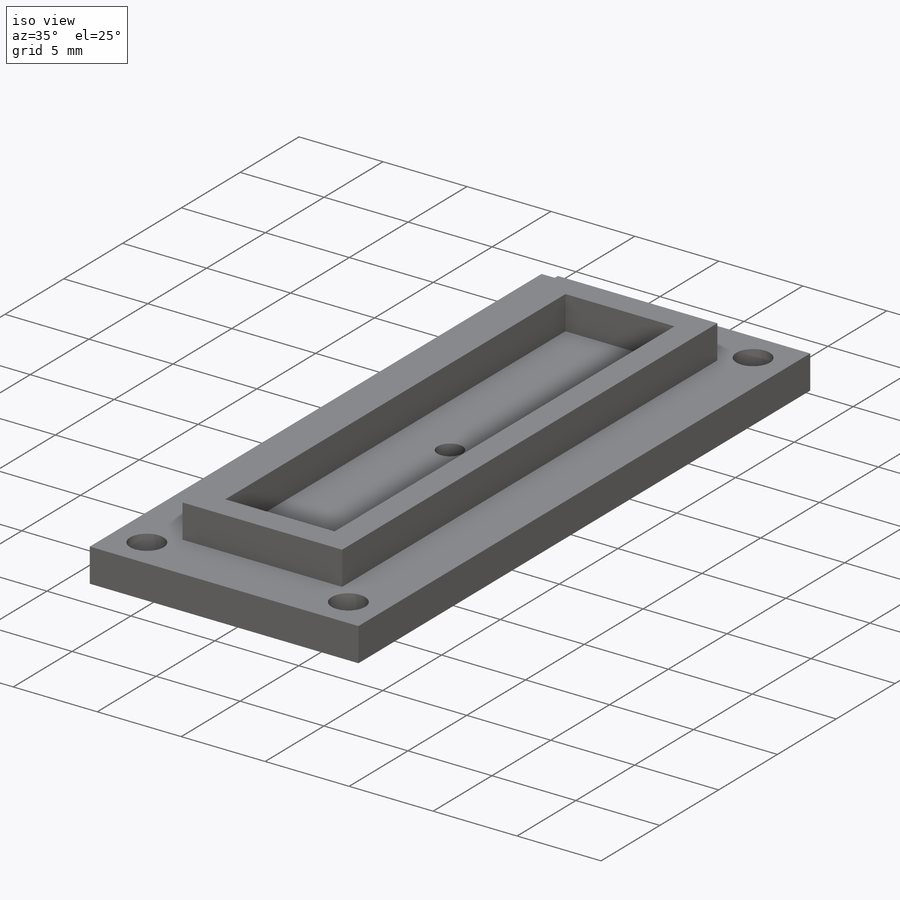
[diagram: iso view]
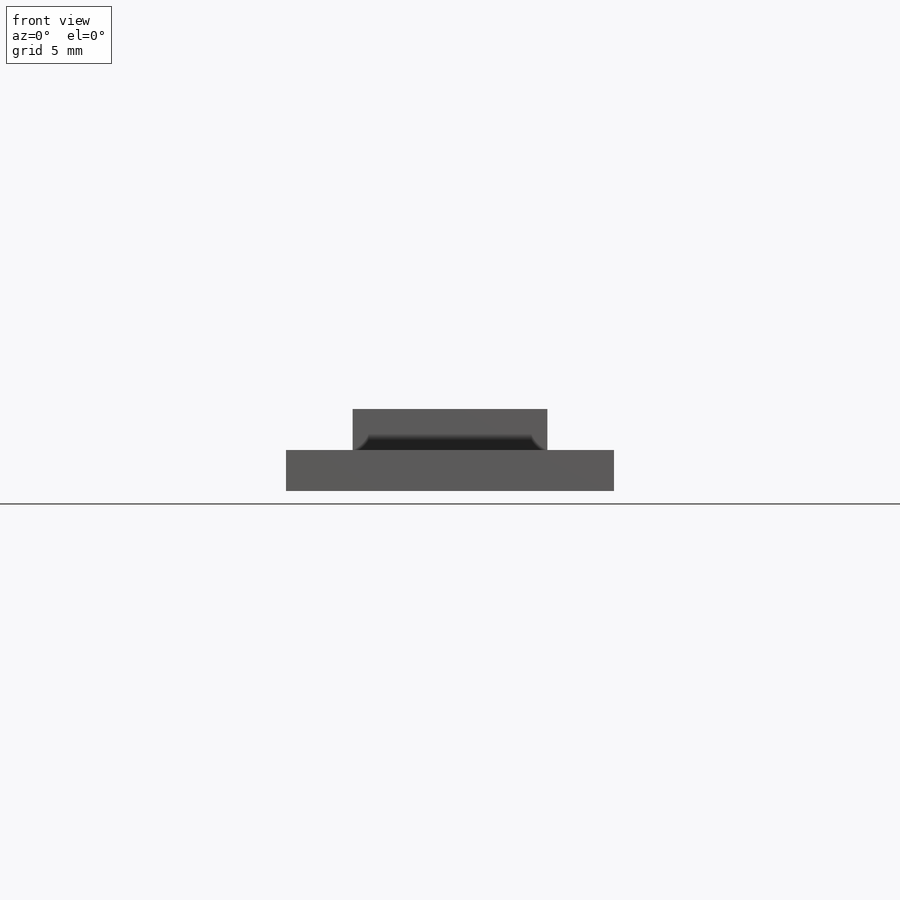
[diagram: front view]
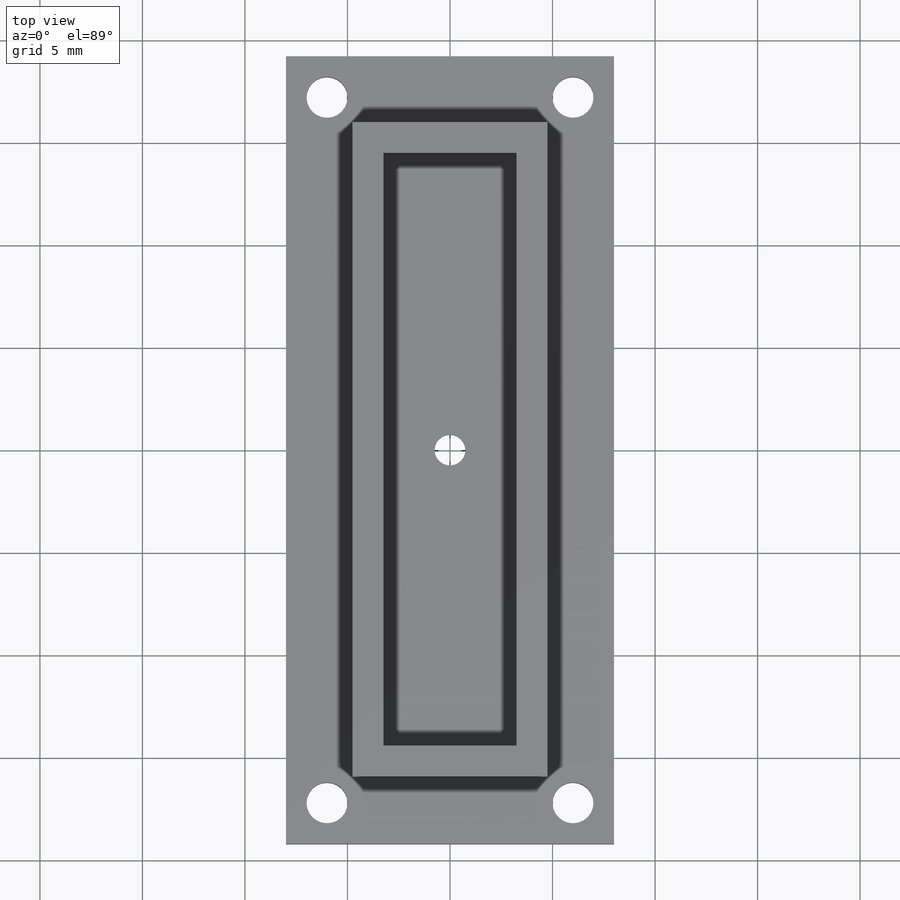
[diagram: top view]
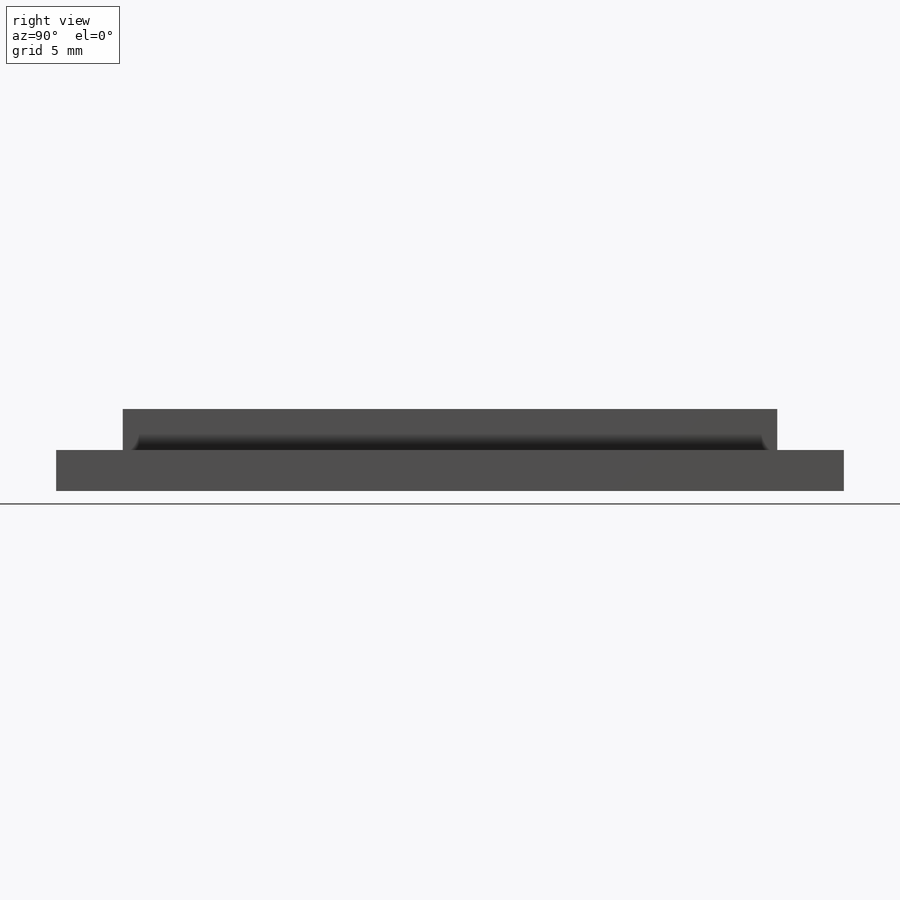
[diagram: right view]
SOLIDWORKS PART (.sldprt)
format: sldprt  version: not decoded by parser v0  size: 237,568 bytes
history: native  units: mm
features: sketch x7, cut_extrude x3, plane x2, mirror x2, material x1, extrude x1 (+13 scaffold rows collapsed)
feature tree (29):
  scaffold x13  (default folders/planes/origin — collapsed)
  material  "ABS"
  sketch  "Sketch1"
  extrude  "Boss-Extrude1"  Depth=2mm
  sketch  "Sketch2"  dims[D1=2.0mm D5=1.5mm D6=1.0mm D7=5.0mm]
  sketch  "Sketch3"  dims[c1.D1=2.0mm c1.D2=~39.42973mm c2.D1=2.0mm]
  cut_extrude  "Cut-Extrude1"  [1 undecoded]
  sketch  "Sketch4"
  plane  "Plane1"
  plane  "Plane2"
  mirror  "Mirror1"
  mirror  "Mirror2"
  sketch  "Sketch2<3>"  dims[D1=2.0mm D19=1.0mm D5=1.5mm D6=1.0mm D7=5.0mm]
  sketch  "Sketch5"  dims[D1=1.5mm]
  cut_extrude  "Cut-Extrude2"  [1 undecoded]
  sketch  "Sketch6"  dims[D1=2.5mm]
  cut_extrude  "Cut-Extrude3"  Depth=1mm
decode coverage: 7 of 13 modeling features carry decoded parameters
note: ~ marks probable driven/reference dimensions
note: 2 parameter values undecoded
note: suppression state not decoded; provenance and decode notes live in map.json
